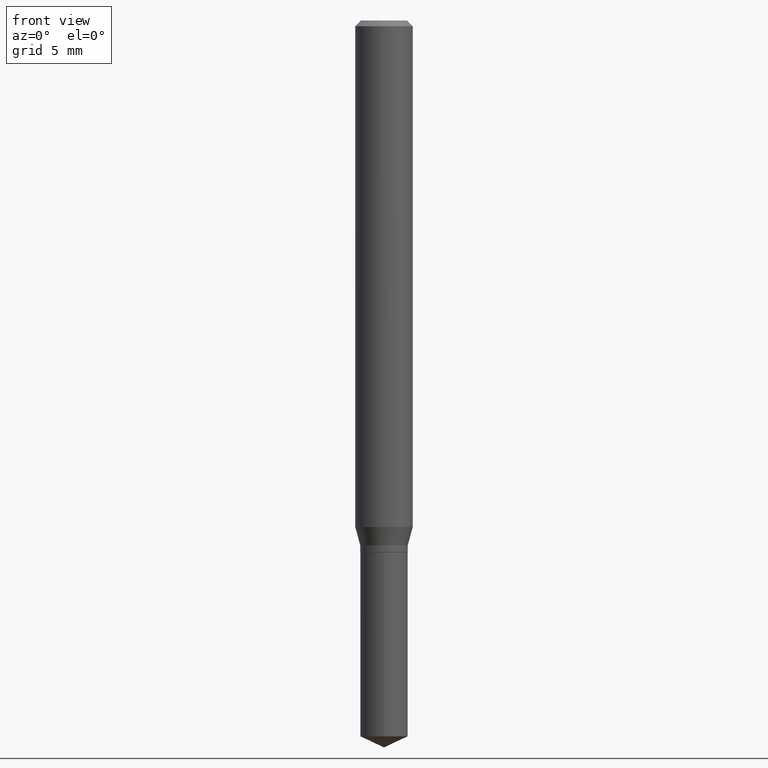
[diagram: clean part render]
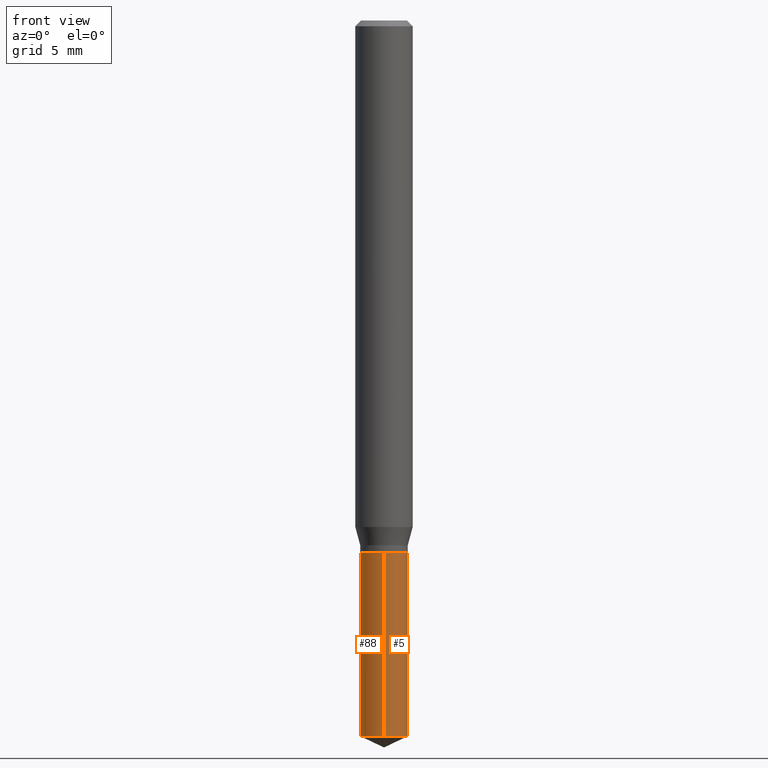
[diagram: same view with one multi-face feature highlighted, each face labeled with its STEP entity id]
A machine part, front view. The highlighted faces form ONE feature: a constant-radius fillet chain: 2 tangent blend faces with common blend radius 1.2446 mm. The faces share edges in the B-rep.
Their STEP definitions:
[1] entity #88 (Cylinder):
#2 = VERTEX_POINT ( 'NONE', #323 ) ;
#6 = DIRECTION ( 'NONE',  ( -2.445458899330790108E-29, 3.491495526022433205E-15, 1.000000000000000000 ) ) ;
#14 = DIRECTION ( 'NONE',  ( -2.445458899330790108E-29, 3.491495526022433205E-15, 1.000000000000000000 ) ) ;
#43 = CARTESIAN_POINT ( 'NONE',  ( 3.481659405224757778E-16, 0.04899999999999617856, -1.094500000000000028 ) ) ;
#45 = FACE_OUTER_BOUND ( 'NONE', #82, .T. ) ;
#47 = VERTEX_POINT ( 'NONE', #479 ) ;
#68 = DIRECTION ( 'NONE',  ( -2.445458899330790108E-29, 3.491495526022433205E-15, 1.000000000000000000 ) ) ;
#82 = EDGE_LOOP ( 'NONE', ( #195, #161, #84, #358 ) ) ;
#83 = EDGE_CURVE ( 'NONE', #47, #274, #455, .T. ) ;
#84 = ORIENTED_EDGE ( 'NONE', *, *, #206, .T. ) ;
#88 = ADVANCED_FACE ( 'NONE', ( #45 ), #205, .T. ) ;
#90 = VECTOR ( 'NONE', #107, 39.37007874015748143 ) ;
#91 = CIRCLE ( 'NONE', #301, 0.04900000000000000189 ) ;
#107 = DIRECTION ( 'NONE',  ( -2.445458899330790108E-29, 3.491495526022433599E-15, 1.000000000000000000 ) ) ;
#113 = VERTEX_POINT ( 'NONE', #351 ) ;
#116 = AXIS2_PLACEMENT_3D ( 'NONE', #345, #6, #270 ) ;
#153 = CARTESIAN_POINT ( 'NONE',  ( -3.421651712066003028E-16, -0.04900000000000382522, -1.094499999999999806 ) ) ;
#161 = ORIENTED_EDGE ( 'NONE', *, *, #269, .T. ) ;
#174 = DIRECTION ( 'NONE',  ( -6.982962677686265922E-15, -1.000000000000000000, 2.787599993534962411E-15 ) ) ;
#195 = ORIENTED_EDGE ( 'NONE', *, *, #83, .F. ) ;
#205 = CYLINDRICAL_SURFACE ( 'NONE', #116, 0.04900000000000000189 ) ;
#206 = EDGE_CURVE ( 'NONE', #113, #2, #266, .T. ) ;
#229 = CARTESIAN_POINT ( 'NONE',  ( 3.481659405224850963E-16, 0.04899999999999617162, -1.094500000000000028 ) ) ;
#266 = LINE ( 'NONE', #153, #90 ) ;
#269 = EDGE_CURVE ( 'NONE', #47, #113, #286, .T. ) ;
#270 = DIRECTION ( 'NONE',  ( -6.982962677686265922E-15, -1.000000000000000000, 2.787599993534962411E-15 ) ) ;
#274 = VERTEX_POINT ( 'NONE', #229 ) ;
#286 = CIRCLE ( 'NONE', #422, 0.04900000000000000189 ) ;
#301 = AXIS2_PLACEMENT_3D ( 'NONE', #418, #14, #174 ) ;
#323 = CARTESIAN_POINT ( 'NONE',  ( -3.421651712066003028E-16, -0.04900000000000382522, -1.094499999999999806 ) ) ;
#331 = DIRECTION ( 'NONE',  ( -6.982962677686265922E-15, -1.000000000000000000, 5.575199987069924823E-15 ) ) ;
#344 = DIRECTION ( 'NONE',  ( -2.445458899330790108E-29, 3.491495526022433599E-15, 1.000000000000000000 ) ) ;
#345 = CARTESIAN_POINT ( 'NONE',  ( 2.676565608369631794E-29, -3.821426325363822773E-15, -1.094499999999999806 ) ) ;
#351 = CARTESIAN_POINT ( 'NONE',  ( -3.421651712065910830E-16, -0.04900000000000515055, -1.473250924750404867 ) ) ;
#358 = ORIENTED_EDGE ( 'NONE', *, *, #436, .F. ) ;
#418 = CARTESIAN_POINT ( 'NONE',  ( 2.676565608369631794E-29, -3.821426325363822773E-15, -1.094499999999999806 ) ) ;
#422 = AXIS2_PLACEMENT_3D ( 'NONE', #435, #68, #331 ) ;
#424 = VECTOR ( 'NONE', #344, 39.37007874015748143 ) ;
#435 = CARTESIAN_POINT ( 'NONE',  ( 3.602785427930276609E-29, -5.143833484606722832E-15, -1.473250924750405311 ) ) ;
#436 = EDGE_CURVE ( 'NONE', #274, #2, #91, .T. ) ;
#455 = LINE ( 'NONE', #43, #424 ) ;
#479 = CARTESIAN_POINT ( 'NONE',  ( 3.481659405224851456E-16, 0.04899999999999486017, -1.473250924750405533 ) ) ;
[2] entity #5 (Cylinder):
#2 = VERTEX_POINT ( 'NONE', #323 ) ;
#5 = ADVANCED_FACE ( 'NONE', ( #364 ), #474, .T. ) ;
#43 = CARTESIAN_POINT ( 'NONE',  ( 3.481659405224757778E-16, 0.04899999999999617856, -1.094500000000000028 ) ) ;
#47 = VERTEX_POINT ( 'NONE', #479 ) ;
#56 = DIRECTION ( 'NONE',  ( -6.982962677686265922E-15, -1.000000000000000000, 2.787599993534962411E-15 ) ) ;
#58 = CARTESIAN_POINT ( 'NONE',  ( 2.676565608369631794E-29, -3.821426325363822773E-15, -1.094499999999999806 ) ) ;
#83 = EDGE_CURVE ( 'NONE', #47, #274, #455, .T. ) ;
#90 = VECTOR ( 'NONE', #107, 39.37007874015748143 ) ;
#93 = DIRECTION ( 'NONE',  ( -6.982962677686265922E-15, -1.000000000000000000, 2.787599993534962411E-15 ) ) ;
#98 = ORIENTED_EDGE ( 'NONE', *, *, #184, .F. ) ;
#107 = DIRECTION ( 'NONE',  ( -2.445458899330790108E-29, 3.491495526022433599E-15, 1.000000000000000000 ) ) ;
#113 = VERTEX_POINT ( 'NONE', #351 ) ;
#123 = CARTESIAN_POINT ( 'NONE',  ( 3.602785427930276609E-29, -5.143833484606722832E-15, -1.473250924750405311 ) ) ;
#128 = DIRECTION ( 'NONE',  ( -2.445458899330790108E-29, 3.491495526022433205E-15, 1.000000000000000000 ) ) ;
#129 = CIRCLE ( 'NONE', #325, 0.04900000000000000189 ) ;
#153 = CARTESIAN_POINT ( 'NONE',  ( -3.421651712066003028E-16, -0.04900000000000382522, -1.094499999999999806 ) ) ;
#155 = ORIENTED_EDGE ( 'NONE', *, *, #316, .T. ) ;
#184 = EDGE_CURVE ( 'NONE', #2, #274, #129, .T. ) ;
#203 = DIRECTION ( 'NONE',  ( -6.982962677686265922E-15, -1.000000000000000000, 5.575199987069924823E-15 ) ) ;
#206 = EDGE_CURVE ( 'NONE', #113, #2, #266, .T. ) ;
#229 = CARTESIAN_POINT ( 'NONE',  ( 3.481659405224850963E-16, 0.04899999999999617162, -1.094500000000000028 ) ) ;
#256 = CARTESIAN_POINT ( 'NONE',  ( 2.676565608369631794E-29, -3.821426325363822773E-15, -1.094499999999999806 ) ) ;
#266 = LINE ( 'NONE', #153, #90 ) ;
#274 = VERTEX_POINT ( 'NONE', #229 ) ;
#313 = ORIENTED_EDGE ( 'NONE', *, *, #83, .T. ) ;
#316 = EDGE_CURVE ( 'NONE', #113, #47, #488, .T. ) ;
#323 = CARTESIAN_POINT ( 'NONE',  ( -3.421651712066003028E-16, -0.04900000000000382522, -1.094499999999999806 ) ) ;
#325 = AXIS2_PLACEMENT_3D ( 'NONE', #256, #387, #56 ) ;
#343 = AXIS2_PLACEMENT_3D ( 'NONE', #123, #413, #203 ) ;
#344 = DIRECTION ( 'NONE',  ( -2.445458899330790108E-29, 3.491495526022433599E-15, 1.000000000000000000 ) ) ;
#351 = CARTESIAN_POINT ( 'NONE',  ( -3.421651712065910830E-16, -0.04900000000000515055, -1.473250924750404867 ) ) ;
#364 = FACE_OUTER_BOUND ( 'NONE', #425, .T. ) ;
#370 = ORIENTED_EDGE ( 'NONE', *, *, #206, .F. ) ;
#387 = DIRECTION ( 'NONE',  ( -2.445458899330790108E-29, 3.491495526022433205E-15, 1.000000000000000000 ) ) ;
#395 = AXIS2_PLACEMENT_3D ( 'NONE', #58, #128, #93 ) ;
#413 = DIRECTION ( 'NONE',  ( -2.445458899330790108E-29, 3.491495526022433205E-15, 1.000000000000000000 ) ) ;
#424 = VECTOR ( 'NONE', #344, 39.37007874015748143 ) ;
#425 = EDGE_LOOP ( 'NONE', ( #155, #313, #98, #370 ) ) ;
#455 = LINE ( 'NONE', #43, #424 ) ;
#474 = CYLINDRICAL_SURFACE ( 'NONE', #395, 0.04900000000000000189 ) ;
#479 = CARTESIAN_POINT ( 'NONE',  ( 3.481659405224851456E-16, 0.04899999999999486017, -1.473250924750405533 ) ) ;
#488 = CIRCLE ( 'NONE', #343, 0.04900000000000000189 ) ;